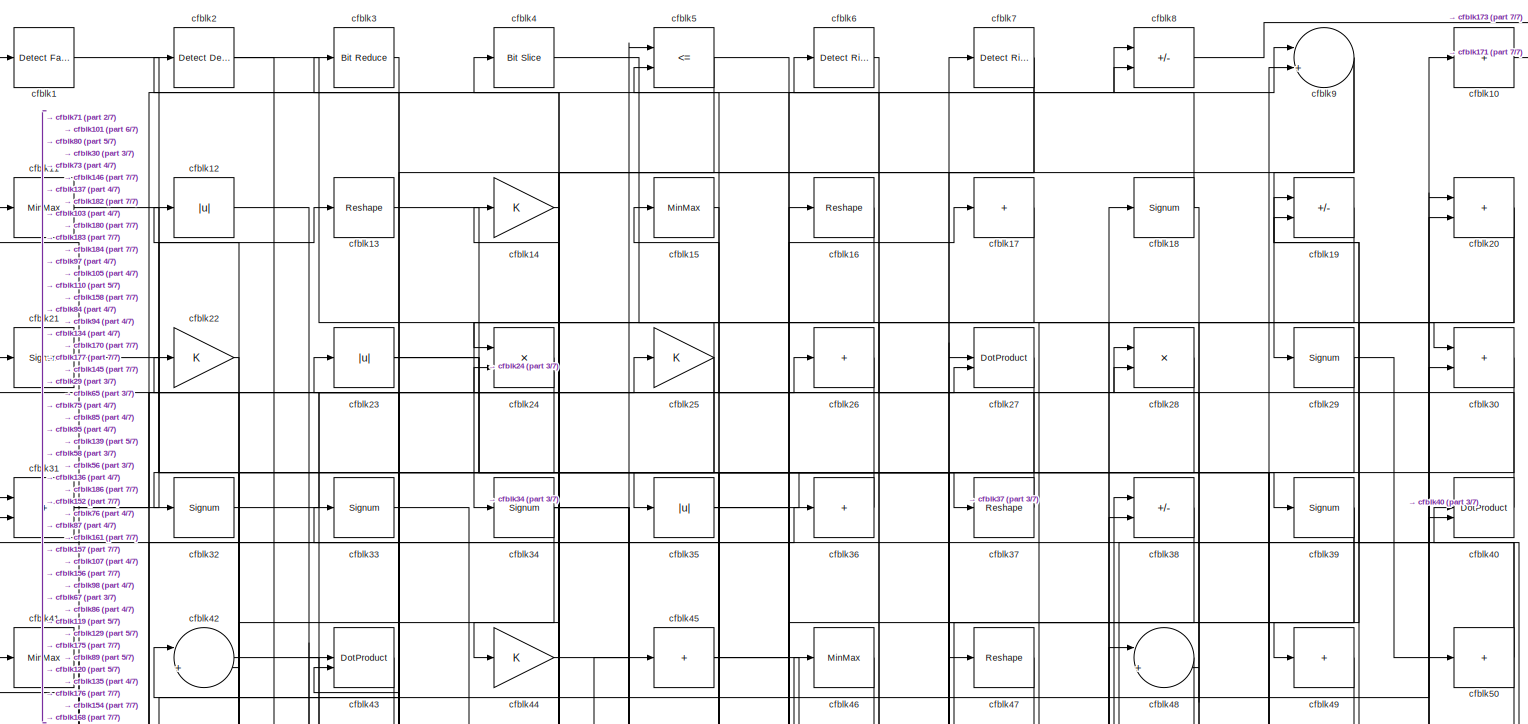
[diagram: root canvas - part 1/7, full width, top band]
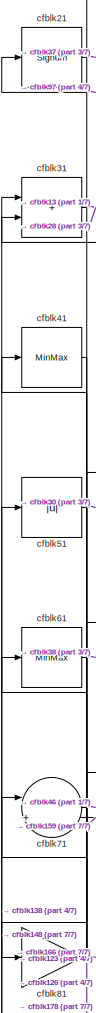
[diagram: root canvas - part 2/7, top left region]
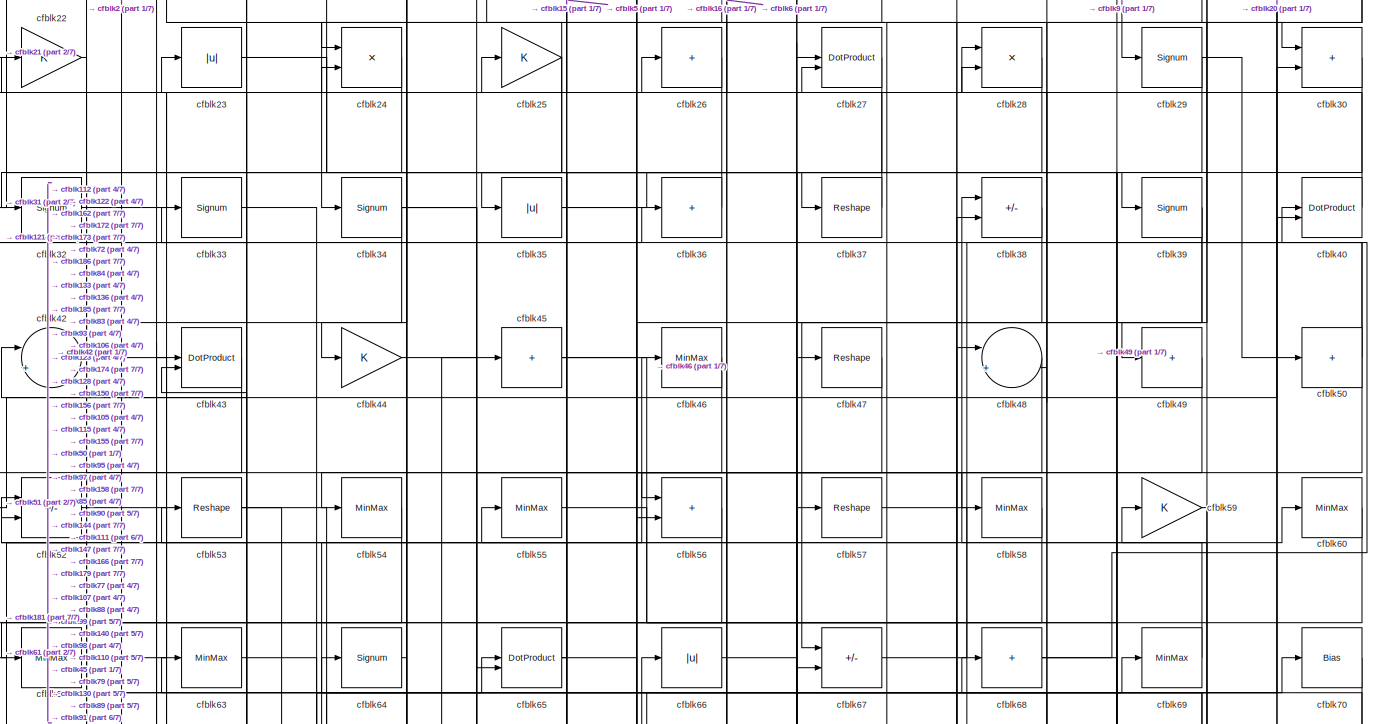
[diagram: root canvas - part 3/7, full width, top band]
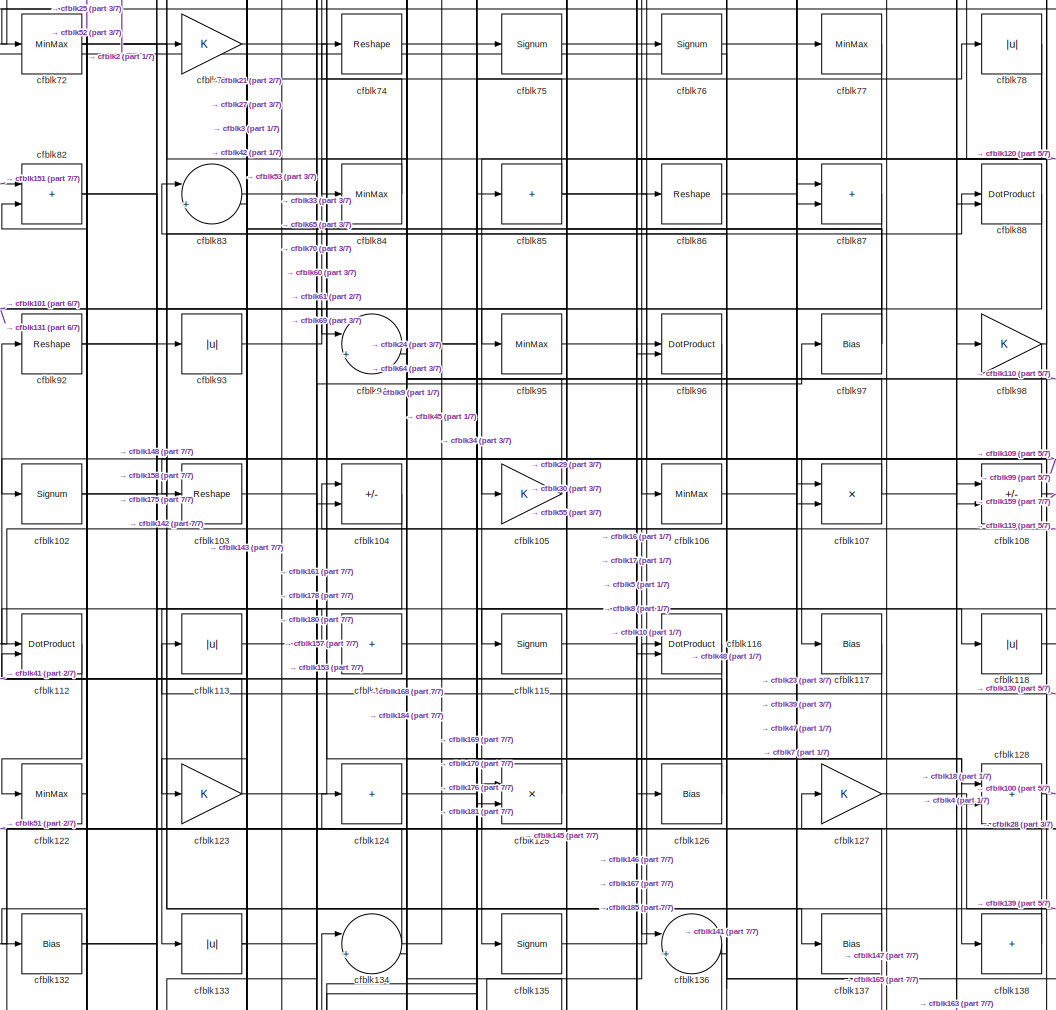
[diagram: root canvas - part 4/7, central region]
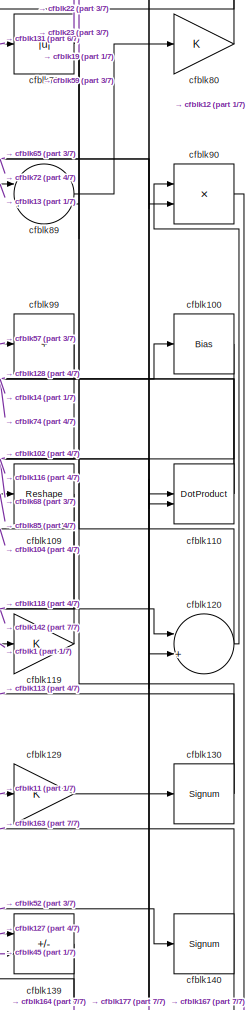
[diagram: root canvas - part 5/7, middle right region]
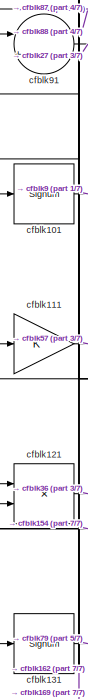
[diagram: root canvas - part 6/7, middle left region]
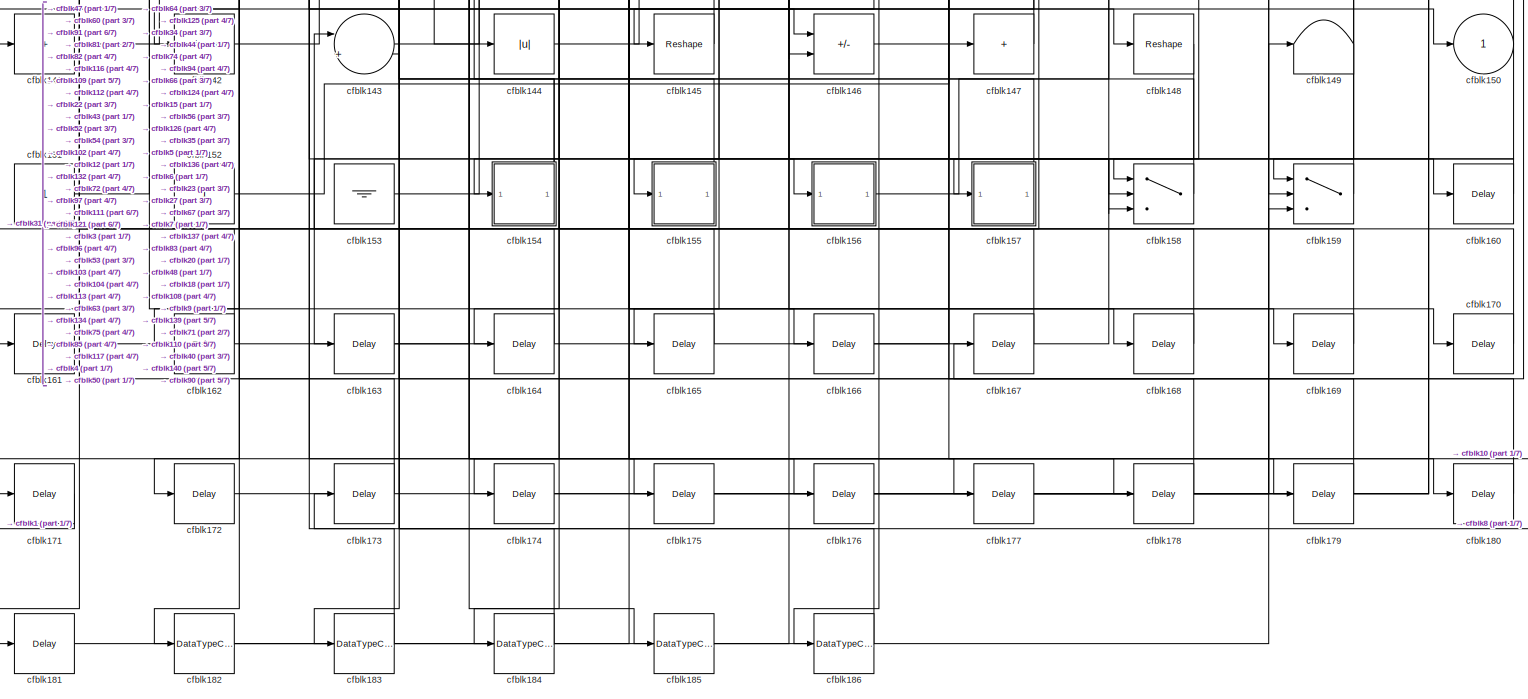
[diagram: root canvas - part 7/7, full width, bottom band]
MODEL slx_28f1ce7e9961
KIND model
CONFIG AbsTol = auto
CONFIG EnableMultiTasking = off
CONFIG FixedStep = auto
CONFIG MaxStep = auto
CONFIG MinStep = auto
CONFIG RelTol = 1e-3
CONFIG SampleTimeConstraint = Unconstrained
CONFIG SolverName = VariableStepAuto
CONFIG StartTime = 0.0
CONFIG StopTime = 10.0
BLOCK [Reference] cfblk1  REF=hdlsllib/Logic and Bit
Operations/Detect Fall
Nonpositive
  SourceBlock = hdlsllib/Logic and Bit\nOperations/Detect Fall\nNonpositive
  SourceType = Detect Fall Nonpositive
BLOCK [Sum] cfblk10
  IconShape = rectangular
  Inputs = +
BLOCK [Bias] cfblk100
  Bias = 0.0
  SaturateOnIntegerOverflow = off
BLOCK [Signum] cfblk101
BLOCK [Signum] cfblk102
BLOCK [Reshape] cfblk103
BLOCK [Sum] cfblk104
  IconShape = rectangular
  Inputs = +-
BLOCK [Gain] cfblk105
BLOCK [MinMax] cfblk106
BLOCK [Product] cfblk107
  Inputs = */
  RndMeth = Zero
  SaturateOnIntegerOverflow = on
BLOCK [Sum] cfblk108
  IconShape = rectangular
  Inputs = +-
BLOCK [Reshape] cfblk109
BLOCK [MinMax] cfblk11
BLOCK [DotProduct] cfblk110
  OutDataTypeStr = Inherit: Inherit via internal rule
BLOCK [Gain] cfblk111
BLOCK [DotProduct] cfblk112
  OutDataTypeStr = Inherit: Inherit via internal rule
BLOCK [Abs] cfblk113
  SaturateOnIntegerOverflow = off
BLOCK [Sum] cfblk114
  IconShape = rectangular
  Inputs = +
BLOCK [Signum] cfblk115
BLOCK [DotProduct] cfblk116
  OutDataTypeStr = Inherit: Inherit via internal rule
BLOCK [Bias] cfblk117
  Bias = 0.0
  SaturateOnIntegerOverflow = off
BLOCK [Abs] cfblk118
  SaturateOnIntegerOverflow = off
BLOCK [Gain] cfblk119
BLOCK [Abs] cfblk12
  SaturateOnIntegerOverflow = off
BLOCK [Sum] cfblk120
  Inputs = |++
BLOCK [Product] cfblk121
  Inputs = */
  RndMeth = Zero
  SaturateOnIntegerOverflow = on
BLOCK [MinMax] cfblk122
BLOCK [Gain] cfblk123
BLOCK [Sum] cfblk124
  IconShape = rectangular
  Inputs = +
BLOCK [Product] cfblk125
  Inputs = */
  RndMeth = Zero
  SaturateOnIntegerOverflow = on
BLOCK [Bias] cfblk126
  Bias = 0.0
  SaturateOnIntegerOverflow = off
BLOCK [Gain] cfblk127
BLOCK [Sum] cfblk128
  IconShape = rectangular
BLOCK [Gain] cfblk129
BLOCK [Reshape] cfblk13
BLOCK [Signum] cfblk130
BLOCK [Signum] cfblk131
BLOCK [Bias] cfblk132
  Bias = 0.0
  SaturateOnIntegerOverflow = off
BLOCK [Abs] cfblk133
  SaturateOnIntegerOverflow = off
BLOCK [Sum] cfblk134
  Inputs = |++
BLOCK [Signum] cfblk135
BLOCK [Sum] cfblk136
  Inputs = |++
BLOCK [Bias] cfblk137
  Bias = 0.0
  SaturateOnIntegerOverflow = off
BLOCK [Sum] cfblk138
  IconShape = rectangular
  Inputs = +
BLOCK [Sum] cfblk139
  IconShape = rectangular
  Inputs = +-
BLOCK [Gain] cfblk14
BLOCK [Signum] cfblk140
BLOCK [Sum] cfblk141
  IconShape = rectangular
  Inputs = +
BLOCK [Signum] cfblk142
BLOCK [Sum] cfblk143
  Inputs = |++
BLOCK [Abs] cfblk144
  SaturateOnIntegerOverflow = off
BLOCK [Reshape] cfblk145
BLOCK [Sum] cfblk146
  IconShape = rectangular
  Inputs = +-
BLOCK [Sum] cfblk147
  IconShape = rectangular
  Inputs = +
BLOCK [Reshape] cfblk148
BLOCK [Terminator] cfblk149
BLOCK [MinMax] cfblk15
BLOCK [Outport] cfblk150
  VectorParamsAs1DForOutWhenUnconnected = off
BLOCK [Constant] cfblk151
  SampleTime = -1
BLOCK [Constant] cfblk152
  SampleTime = -1
BLOCK [Ground] cfblk153
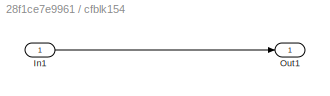
BLOCK [SubSystem] cfblk154
  LibrarySourceBlock = hdlsllib/Ports &\nSubsystems/Subsystem
BLOCK [Inport] cfblk154/In1
BLOCK [Outport] cfblk154/Out1
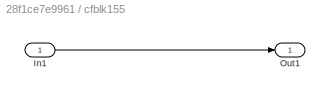
BLOCK [SubSystem] cfblk155
  LibrarySourceBlock = hdlsllib/Ports &\nSubsystems/Subsystem
BLOCK [Inport] cfblk155/In1
BLOCK [Outport] cfblk155/Out1
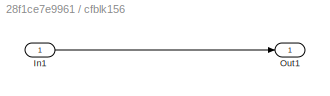
BLOCK [SubSystem] cfblk156
  LibrarySourceBlock = hdlsllib/Ports &\nSubsystems/Subsystem
BLOCK [Inport] cfblk156/In1
BLOCK [Outport] cfblk156/Out1
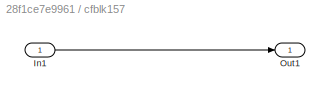
BLOCK [SubSystem] cfblk157
  LibrarySourceBlock = hdlsllib/Ports &\nSubsystems/Subsystem
BLOCK [Inport] cfblk157/In1
BLOCK [Outport] cfblk157/Out1
BLOCK [Switch] cfblk158
  InputSameDT = off
  SaturateOnIntegerOverflow = off
BLOCK [Switch] cfblk159
  InputSameDT = off
  SaturateOnIntegerOverflow = off
BLOCK [Reshape] cfblk16
BLOCK [Delay] cfblk160
  InputPortMap = u0
  SampleTime = 1
BLOCK [Delay] cfblk161
  InputPortMap = u0
  SampleTime = 1
BLOCK [Delay] cfblk162
  InputPortMap = u0
  SampleTime = 1
BLOCK [Delay] cfblk163
  InputPortMap = u0
  SampleTime = 1
BLOCK [Delay] cfblk164
  InputPortMap = u0
  SampleTime = 1
BLOCK [Delay] cfblk165
  InputPortMap = u0
  SampleTime = 1
BLOCK [Delay] cfblk166
  InputPortMap = u0
  SampleTime = 1
BLOCK [Delay] cfblk167
  InputPortMap = u0
  SampleTime = 1
BLOCK [Delay] cfblk168
  InputPortMap = u0
  SampleTime = 1
BLOCK [Delay] cfblk169
  InputPortMap = u0
  SampleTime = 1
BLOCK [Sum] cfblk17
  IconShape = rectangular
  Inputs = +
BLOCK [Delay] cfblk170
  InputPortMap = u0
  SampleTime = 1
BLOCK [Delay] cfblk171
  InputPortMap = u0
  SampleTime = 1
BLOCK [Delay] cfblk172
  InputPortMap = u0
  SampleTime = 1
BLOCK [Delay] cfblk173
  InputPortMap = u0
  SampleTime = 1
BLOCK [Delay] cfblk174
  InputPortMap = u0
  SampleTime = 1
BLOCK [Delay] cfblk175
  InputPortMap = u0
  SampleTime = 1
BLOCK [Delay] cfblk176
  InputPortMap = u0
  SampleTime = 1
BLOCK [Delay] cfblk177
  InputPortMap = u0
  SampleTime = 1
BLOCK [Delay] cfblk178
  InputPortMap = u0
  SampleTime = 1
BLOCK [Delay] cfblk179
  InputPortMap = u0
  SampleTime = 1
BLOCK [Signum] cfblk18
BLOCK [Delay] cfblk180
  InputPortMap = u0
  SampleTime = 1
BLOCK [Delay] cfblk181
  InputPortMap = u0
  SampleTime = 1
BLOCK [DataTypeConversion] cfblk182
  OutDataTypeStr = uint8
  RndMeth = Floor
  SaturateOnIntegerOverflow = off
BLOCK [DataTypeConversion] cfblk183
  OutDataTypeStr = uint8
  RndMeth = Floor
  SaturateOnIntegerOverflow = off
BLOCK [DataTypeConversion] cfblk184
  OutDataTypeStr = uint8
  RndMeth = Floor
  SaturateOnIntegerOverflow = off
BLOCK [DataTypeConversion] cfblk185
  OutDataTypeStr = uint8
  RndMeth = Floor
  SaturateOnIntegerOverflow = off
BLOCK [DataTypeConversion] cfblk186
  OutDataTypeStr = uint8
  RndMeth = Floor
  SaturateOnIntegerOverflow = off
BLOCK [Sum] cfblk19
  IconShape = rectangular
  Inputs = +-
BLOCK [Reference] cfblk2  REF=simulink/Logic and Bit
Operations/Detect
Decrease
  LibrarySourceBlock = hdlsllib/Logic and Bit\nOperations/Detect\nDecrease
  SourceBlock = simulink/Logic and Bit\nOperations/Detect\nDecrease
  SourceType = Detect Decrease
BLOCK [Sum] cfblk20
  IconShape = rectangular
BLOCK [Signum] cfblk21
BLOCK [Gain] cfblk22
BLOCK [Abs] cfblk23
  SaturateOnIntegerOverflow = off
BLOCK [Product] cfblk24
  Inputs = */
  RndMeth = Zero
  SaturateOnIntegerOverflow = on
BLOCK [Gain] cfblk25
BLOCK [Sum] cfblk26
  IconShape = rectangular
  Inputs = +
BLOCK [DotProduct] cfblk27
  OutDataTypeStr = Inherit: Inherit via internal rule
BLOCK [Product] cfblk28
  Inputs = */
  RndMeth = Zero
  SaturateOnIntegerOverflow = on
BLOCK [Signum] cfblk29
BLOCK [Reference] cfblk3  REF=hdlsllib/Logic and Bit
Operations/Bit Reduce
  SourceBlock = hdlsllib/Logic and Bit\nOperations/Bit Reduce
  SourceType = Bit Reduce
BLOCK [Sum] cfblk30
  IconShape = rectangular
BLOCK [Sum] cfblk31
  IconShape = rectangular
BLOCK [Signum] cfblk32
BLOCK [Signum] cfblk33
BLOCK [Signum] cfblk34
BLOCK [Abs] cfblk35
  SaturateOnIntegerOverflow = off
BLOCK [Sum] cfblk36
  IconShape = rectangular
  Inputs = +
BLOCK [Reshape] cfblk37
BLOCK [Sum] cfblk38
  IconShape = rectangular
  Inputs = +-
BLOCK [Signum] cfblk39
BLOCK [Reference] cfblk4  REF=hdlsllib/Logic and Bit
Operations/Bit Slice
  SourceBlock = hdlsllib/Logic and Bit\nOperations/Bit Slice
  SourceType = Bit Slice
BLOCK [DotProduct] cfblk40
  OutDataTypeStr = Inherit: Inherit via internal rule
BLOCK [MinMax] cfblk41
BLOCK [Sum] cfblk42
  Inputs = |++
BLOCK [DotProduct] cfblk43
  OutDataTypeStr = Inherit: Inherit via internal rule
BLOCK [Gain] cfblk44
BLOCK [Sum] cfblk45
  IconShape = rectangular
  Inputs = +
BLOCK [MinMax] cfblk46
BLOCK [Reshape] cfblk47
BLOCK [Sum] cfblk48
  Inputs = |++
BLOCK [Sum] cfblk49
  IconShape = rectangular
  Inputs = +
BLOCK [RelationalOperator] cfblk5
  InputSameDT = off
  Operator = <=
  OutDataTypeStr = boolean
BLOCK [Sum] cfblk50
  IconShape = rectangular
  Inputs = +
BLOCK [Abs] cfblk51
  SaturateOnIntegerOverflow = off
BLOCK [Sum] cfblk52
  IconShape = rectangular
  Inputs = +-
BLOCK [Reshape] cfblk53
BLOCK [MinMax] cfblk54
BLOCK [MinMax] cfblk55
BLOCK [Sum] cfblk56
  IconShape = rectangular
BLOCK [Reshape] cfblk57
BLOCK [MinMax] cfblk58
BLOCK [Gain] cfblk59
BLOCK [Reference] cfblk6  REF=hdlsllib/Logic and Bit
Operations/Detect Rise
Nonnegative
  SourceBlock = hdlsllib/Logic and Bit\nOperations/Detect Rise\nNonnegative
  SourceType = Detect Rise Nonnegative
BLOCK [MinMax] cfblk60
BLOCK [MinMax] cfblk61
BLOCK [MinMax] cfblk62
BLOCK [MinMax] cfblk63
BLOCK [Signum] cfblk64
BLOCK [DotProduct] cfblk65
  OutDataTypeStr = Inherit: Inherit via internal rule
BLOCK [Abs] cfblk66
  SaturateOnIntegerOverflow = off
BLOCK [Sum] cfblk67
  IconShape = rectangular
  Inputs = +-
BLOCK [Sum] cfblk68
  IconShape = rectangular
  Inputs = +
BLOCK [MinMax] cfblk69
BLOCK [Reference] cfblk7  REF=hdlsllib/Logic and Bit
Operations/Detect Rise
Nonnegative
  SourceBlock = hdlsllib/Logic and Bit\nOperations/Detect Rise\nNonnegative
  SourceType = Detect Rise Nonnegative
BLOCK [Bias] cfblk70
  Bias = 0.0
  SaturateOnIntegerOverflow = off
BLOCK [Sum] cfblk71
  Inputs = |++
BLOCK [MinMax] cfblk72
BLOCK [Gain] cfblk73
BLOCK [Reshape] cfblk74
BLOCK [Signum] cfblk75
BLOCK [Signum] cfblk76
BLOCK [MinMax] cfblk77
BLOCK [Abs] cfblk78
  SaturateOnIntegerOverflow = off
BLOCK [Abs] cfblk79
  SaturateOnIntegerOverflow = off
BLOCK [Sum] cfblk8
  IconShape = rectangular
  Inputs = +-
BLOCK [Gain] cfblk80
BLOCK [Gain] cfblk81
BLOCK [Sum] cfblk82
  IconShape = rectangular
BLOCK [Sum] cfblk83
  Inputs = |++
BLOCK [MinMax] cfblk84
BLOCK [Sum] cfblk85
  IconShape = rectangular
  Inputs = +
BLOCK [Reshape] cfblk86
BLOCK [Sum] cfblk87
  IconShape = rectangular
BLOCK [DotProduct] cfblk88
  OutDataTypeStr = Inherit: Inherit via internal rule
BLOCK [Sum] cfblk89
  Inputs = |++
BLOCK [Sum] cfblk9
  Inputs = |++
BLOCK [Product] cfblk90
  Inputs = */
  RndMeth = Zero
  SaturateOnIntegerOverflow = on
BLOCK [Sum] cfblk91
  Inputs = |++
BLOCK [Reshape] cfblk92
BLOCK [Abs] cfblk93
  SaturateOnIntegerOverflow = off
BLOCK [Sum] cfblk94
  Inputs = |++
BLOCK [MinMax] cfblk95
BLOCK [DotProduct] cfblk96
  OutDataTypeStr = Inherit: Inherit via internal rule
BLOCK [Bias] cfblk97
  Bias = 0.0
  SaturateOnIntegerOverflow = off
BLOCK [Gain] cfblk98
BLOCK [Sum] cfblk99
  IconShape = rectangular
  Inputs = +
LINE cfblk100:1 -> cfblk102:1
LINE cfblk101:1 -> cfblk9:1
NET cfblk102:1 -> cfblk175:1, cfblk88:1
LINE cfblk103:1 -> cfblk180:1
LINE cfblk104:1 -> cfblk133:1
LINE cfblk105:1 -> cfblk2:1
LINE cfblk106:1 -> cfblk87:1
NET cfblk107:1 -> cfblk18:1, cfblk24:2
LINE cfblk108:1 -> cfblk159:2
LINE cfblk109:1 -> cfblk142:1
LINE cfblk10:1 -> cfblk171:1
NET cfblk110:1 -> cfblk14:1, cfblk74:1
LINE cfblk111:1 -> cfblk57:1
LINE cfblk112:1 -> cfblk122:1
LINE cfblk113:1 -> cfblk178:1
LINE cfblk114:1 -> cfblk118:1
LINE cfblk115:1 -> cfblk76:1
LINE cfblk116:1 -> cfblk146:2
LINE cfblk117:1 -> cfblk184:1
LINE cfblk118:1 -> cfblk120:1
LINE cfblk119:1 -> cfblk104:1
LINE cfblk11:1 -> cfblk129:1
NET cfblk120:1 -> cfblk19:1, cfblk90:1
LINE cfblk121:1 -> cfblk36:1
LINE cfblk122:1 -> cfblk52:1
NET cfblk123:1 -> cfblk61:1, cfblk69:1
LINE cfblk124:1 -> cfblk78:1
LINE cfblk125:1 -> cfblk92:1
LINE cfblk126:1 -> cfblk41:1
LINE cfblk127:1 -> cfblk139:1
LINE cfblk128:1 -> cfblk100:1
LINE cfblk129:1 -> cfblk130:1
LINE cfblk12:1 -> cfblk146:1
NET cfblk130:1 -> cfblk113:1, cfblk59:1
LINE cfblk131:1 -> cfblk79:1
NET cfblk132:1 -> cfblk125:1, cfblk158:2
NET cfblk133:1 -> cfblk70:1, cfblk83:2
NET cfblk134:1 -> cfblk45:1, cfblk82:2
LINE cfblk135:1 -> cfblk10:1
LINE cfblk136:1 -> cfblk141:1
NET cfblk137:1 -> cfblk127:1, cfblk165:1
LINE cfblk138:1 -> cfblk51:1
LINE cfblk139:1 -> cfblk164:1
LINE cfblk13:1 -> cfblk89:1
NET cfblk140:1 -> cfblk163:1, cfblk68:1
LINE cfblk141:1 -> cfblk116:1
LINE cfblk142:1 -> cfblk97:1
LINE cfblk143:1 -> cfblk85:1
LINE cfblk144:1 -> cfblk66:1
LINE cfblk145:1 -> cfblk124:1
LINE cfblk146:1 -> cfblk160:1
LINE cfblk147:1 -> cfblk83:1
LINE cfblk148:1 -> cfblk31:1
LINE cfblk14:1 -> cfblk44:1
LINE cfblk151:1 -> cfblk82:1
LINE cfblk152:1 -> cfblk7:1
LINE cfblk153:1 -> cfblk75:1
LINE cfblk154/In1:1 -> cfblk154/Out1:1
NET cfblk154:1 -> cfblk111:1, cfblk121:1
LINE cfblk155/In1:1 -> cfblk155/Out1:1
LINE cfblk155:1 -> cfblk53:1
LINE cfblk156/In1:1 -> cfblk156/Out1:1
LINE cfblk156:1 -> cfblk48:1
LINE cfblk157/In1:1 -> cfblk157/Out1:1
LINE cfblk157:1 -> cfblk134:1
LINE cfblk158:1 -> cfblk4:1
LINE cfblk159:1 -> cfblk71:2
LINE cfblk15:1 -> cfblk145:1
LINE cfblk160:1 -> cfblk159:1
LINE cfblk161:1 -> cfblk104:2
LINE cfblk162:1 -> cfblk91:1
LINE cfblk163:1 -> cfblk108:1
LINE cfblk164:1 -> cfblk143:1
LINE cfblk165:1 -> cfblk112:2
LINE cfblk166:1 -> cfblk67:2
LINE cfblk167:1 -> cfblk96:1
LINE cfblk168:1 -> cfblk134:2
LINE cfblk169:1 -> cfblk121:2
LINE cfblk16:1 -> cfblk34:1
LINE cfblk170:1 -> cfblk5:1
LINE cfblk171:1 -> cfblk1:1
LINE cfblk172:1 -> cfblk40:2
LINE cfblk173:1 -> cfblk52:2
LINE cfblk174:1 -> cfblk159:3
LINE cfblk175:1 -> cfblk9:2
LINE cfblk176:1 -> cfblk20:1
LINE cfblk177:1 -> cfblk110:1
LINE cfblk178:1 -> cfblk71:1
LINE cfblk179:1 -> cfblk27:1
LINE cfblk17:1 -> cfblk136:2
LINE cfblk180:1 -> cfblk3:1
LINE cfblk181:1 -> cfblk125:2
LINE cfblk182:1 -> cfblk149:1
LINE cfblk183:1 -> cfblk43:1
LINE cfblk184:1 -> cfblk43:2
LINE cfblk185:1 -> cfblk126:1
LINE cfblk186:1 -> cfblk63:1
NET cfblk18:1 -> cfblk158:1, cfblk8:2
LINE cfblk19:1 -> cfblk48:2
LINE cfblk1:1 -> cfblk119:1
NET cfblk20:1 -> cfblk157:1, cfblk49:1
LINE cfblk21:1 -> cfblk37:1
LINE cfblk22:1 -> cfblk172:1
NET cfblk23:1 -> cfblk147:1, cfblk77:1
LINE cfblk24:1 -> cfblk42:2
NET cfblk25:1 -> cfblk112:1, cfblk24:1, cfblk54:1
LINE cfblk26:1 -> cfblk35:1
LINE cfblk27:1 -> cfblk123:1
LINE cfblk28:1 -> cfblk105:1
NET cfblk29:1 -> cfblk115:1, cfblk50:1
NET cfblk2:1 -> cfblk30:1, cfblk73:1
LINE cfblk30:1 -> cfblk95:1
NET cfblk31:1 -> cfblk13:1, cfblk28:2
LINE cfblk32:1 -> cfblk25:1
LINE cfblk33:1 -> cfblk136:1
NET cfblk34:1 -> cfblk128:1, cfblk150:1, cfblk156:1, cfblk72:1
NET cfblk35:1 -> cfblk158:3, cfblk39:1
LINE cfblk36:1 -> cfblk32:1
LINE cfblk37:1 -> cfblk6:1
LINE cfblk38:1 -> cfblk67:1
NET cfblk39:1 -> cfblk107:2, cfblk56:2
LINE cfblk3:1 -> cfblk103:1
LINE cfblk40:1 -> cfblk15:1
LINE cfblk41:1 -> cfblk81:1
LINE cfblk42:1 -> cfblk137:1
LINE cfblk43:1 -> cfblk182:1
LINE cfblk44:1 -> cfblk177:1
NET cfblk45:1 -> cfblk139:2, cfblk58:1
LINE cfblk46:1 -> cfblk56:1
LINE cfblk47:1 -> cfblk161:1
LINE cfblk48:1 -> cfblk86:1
LINE cfblk49:1 -> cfblk65:2
LINE cfblk4:1 -> cfblk98:1
NET cfblk50:1 -> cfblk11:1, cfblk154:1, cfblk19:2
LINE cfblk51:1 -> cfblk30:2
LINE cfblk52:1 -> cfblk140:1
NET cfblk53:1 -> cfblk106:1, cfblk144:1
LINE cfblk54:1 -> cfblk162:1
LINE cfblk55:1 -> cfblk88:2
LINE cfblk56:1 -> cfblk155:1
LINE cfblk57:1 -> cfblk99:1
LINE cfblk58:1 -> cfblk62:1
LINE cfblk59:1 -> cfblk89:2
NET cfblk5:1 -> cfblk168:1, cfblk94:2
LINE cfblk60:1 -> cfblk181:1
LINE cfblk61:1 -> cfblk38:2
LINE cfblk62:1 -> cfblk26:1
LINE cfblk63:1 -> cfblk185:1
LINE cfblk64:1 -> cfblk174:1
NET cfblk65:1 -> cfblk5:2, cfblk90:2
LINE cfblk66:1 -> cfblk179:1
LINE cfblk67:1 -> cfblk20:2
NET cfblk68:1 -> cfblk110:2, cfblk40:1
LINE cfblk69:1 -> cfblk38:1
LINE cfblk6:1 -> cfblk186:1
LINE cfblk70:1 -> cfblk91:2
NET cfblk71:1 -> cfblk31:2, cfblk46:1
NET cfblk72:1 -> cfblk120:2, cfblk132:1, cfblk148:1
LINE cfblk73:1 -> cfblk138:1
LINE cfblk74:1 -> cfblk176:1
LINE cfblk75:1 -> cfblk16:1
LINE cfblk76:1 -> cfblk47:1
LINE cfblk77:1 -> cfblk135:1
NET cfblk78:1 -> cfblk128:2, cfblk96:2
NET cfblk79:1 -> cfblk22:1, cfblk23:1
NET cfblk7:1 -> cfblk183:1, cfblk87:2
LINE cfblk80:1 -> cfblk12:1
LINE cfblk81:1 -> cfblk166:1
NET cfblk82:1 -> cfblk108:2, cfblk114:1
LINE cfblk83:1 -> cfblk65:1
LINE cfblk84:1 -> cfblk33:1
NET cfblk85:1 -> cfblk109:1, cfblk64:1, cfblk8:1
LINE cfblk86:1 -> cfblk107:1
LINE cfblk87:1 -> cfblk101:1
LINE cfblk88:1 -> cfblk131:1
LINE cfblk89:1 -> cfblk80:1
LINE cfblk8:1 -> cfblk173:1
LINE cfblk90:1 -> cfblk167:1
LINE cfblk91:1 -> cfblk27:2
NET cfblk92:1 -> cfblk93:1, cfblk94:1
LINE cfblk93:1 -> cfblk60:1
NET cfblk94:1 -> cfblk169:1, cfblk170:1
LINE cfblk95:1 -> cfblk17:1
LINE cfblk96:1 -> cfblk143:2
NET cfblk97:1 -> cfblk21:1, cfblk42:1, cfblk55:1
NET cfblk98:1 -> cfblk117:1, cfblk28:1
LINE cfblk99:1 -> cfblk116:2
NET cfblk9:1 -> cfblk29:1, cfblk84:1
note: NET lines group one-source signal fan-out (src -> all destinations, sorted); 1:1 wires keep LINE
